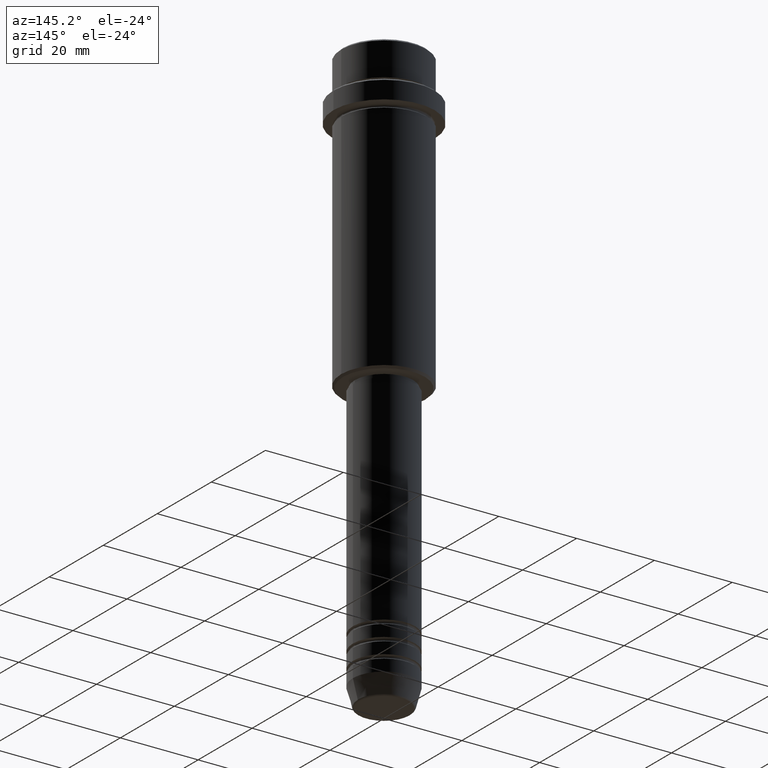
[diagram: clean part render]
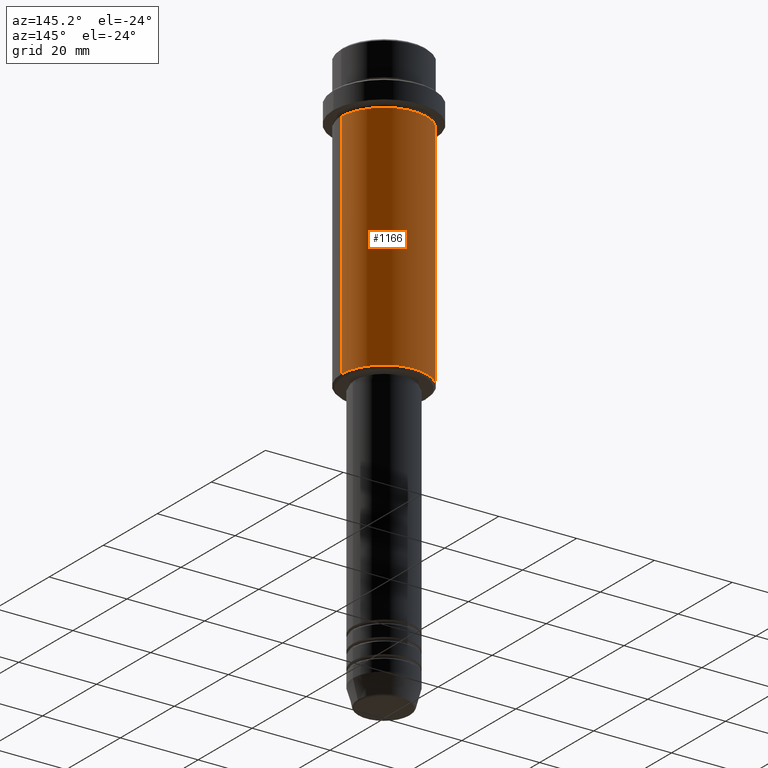
[diagram: same view with one face highlighted and labeled with its STEP entity id]
A machine part, auxiliary view. The second image highlights one B-rep face of the part: STEP entity #1166.
In plain terms, the highlighted cylindrical surface (partial cylindrical patch) has radius 11 mm, axis along (-0, -0, 1).
Its self-contained STEP definition (entity closure, byte-faithful):
#14 = DIRECTION ( 'NONE',  ( -0.000000000000000000, -0.000000000000000000, 1.000000000000000000 ) ) ;
#44 = EDGE_LOOP ( 'NONE', ( #830, #1153, #1371, #793 ) ) ;
#47 = CYLINDRICAL_SURFACE ( 'NONE', #649, 10.99999999999998757 ) ;
#137 = VERTEX_POINT ( 'NONE', #1265 ) ;
#138 = CARTESIAN_POINT ( 'NONE',  ( 10.99999999999998757, 0.000000000000000000, -75.50000000000002842 ) ) ;
#139 = EDGE_CURVE ( 'NONE', #1303, #137, #1374, .T. ) ;
#165 = DIRECTION ( 'NONE',  ( -0.000000000000000000, -0.000000000000000000, 1.000000000000000000 ) ) ;
#191 = CIRCLE ( 'NONE', #1281, 10.99999999999997158 ) ;
#222 = CARTESIAN_POINT ( 'NONE',  ( -10.99999999999998757, 1.347111479062086827E-15, 0.000000000000000000 ) ) ;
#264 = VECTOR ( 'NONE', #14, 1000.000000000000000 ) ;
#265 = EDGE_CURVE ( 'NONE', #137, #617, #1198, .T. ) ;
#389 = DIRECTION ( 'NONE',  ( 1.000000000000000000, 0.000000000000000000, 0.000000000000000000 ) ) ;
#394 = FACE_OUTER_BOUND ( 'NONE', #44, .T. ) ;
#424 = DIRECTION ( 'NONE',  ( -0.000000000000000000, -0.000000000000000000, 1.000000000000000000 ) ) ;
#480 = DIRECTION ( 'NONE',  ( 1.000000000000000000, 0.000000000000000000, 0.000000000000000000 ) ) ;
#511 = EDGE_CURVE ( 'NONE', #1056, #617, #191, .T. ) ;
#552 = EDGE_CURVE ( 'NONE', #1303, #1056, #1249, .T. ) ;
#617 = VERTEX_POINT ( 'NONE', #655 ) ;
#649 = AXIS2_PLACEMENT_3D ( 'NONE', #1022, #165, #389 ) ;
#655 = CARTESIAN_POINT ( 'NONE',  ( -10.99999999999997158, 1.347111479062085841E-15, -16.00000000000000355 ) ) ;
#677 = CARTESIAN_POINT ( 'NONE',  ( 0.000000000000000000, 0.000000000000000000, -16.00000000000000355 ) ) ;
#695 = VECTOR ( 'NONE', #1121, 1000.000000000000000 ) ;
#748 = DIRECTION ( 'NONE',  ( -1.000000000000000000, 0.000000000000000000, 0.000000000000000000 ) ) ;
#793 = ORIENTED_EDGE ( 'NONE', *, *, #552, .F. ) ;
#794 = DIRECTION ( 'NONE',  ( -0.000000000000000000, -0.000000000000000000, 1.000000000000000000 ) ) ;
#830 = ORIENTED_EDGE ( 'NONE', *, *, #139, .T. ) ;
#910 = CARTESIAN_POINT ( 'NONE',  ( 10.99999999999997158, 0.000000000000000000, -16.00000000000000355 ) ) ;
#1022 = CARTESIAN_POINT ( 'NONE',  ( 0.000000000000000000, 0.000000000000000000, 0.000000000000000000 ) ) ;
#1056 = VERTEX_POINT ( 'NONE', #910 ) ;
#1116 = AXIS2_PLACEMENT_3D ( 'NONE', #1378, #424, #748 ) ;
#1121 = DIRECTION ( 'NONE',  ( -0.000000000000000000, -0.000000000000000000, 1.000000000000000000 ) ) ;
#1153 = ORIENTED_EDGE ( 'NONE', *, *, #265, .T. ) ;
#1166 = ADVANCED_FACE ( 'NONE', ( #394 ), #47, .T. ) ;
#1198 = LINE ( 'NONE', #222, #264 ) ;
#1249 = LINE ( 'NONE', #1344, #695 ) ;
#1265 = CARTESIAN_POINT ( 'NONE',  ( -10.99999999999998757, 1.347111479062086827E-15, -75.50000000000002842 ) ) ;
#1281 = AXIS2_PLACEMENT_3D ( 'NONE', #677, #794, #480 ) ;
#1303 = VERTEX_POINT ( 'NONE', #138 ) ;
#1344 = CARTESIAN_POINT ( 'NONE',  ( 10.99999999999998757, 0.000000000000000000, 0.000000000000000000 ) ) ;
#1371 = ORIENTED_EDGE ( 'NONE', *, *, #511, .F. ) ;
#1374 = CIRCLE ( 'NONE', #1116, 10.99999999999998757 ) ;
#1378 = CARTESIAN_POINT ( 'NONE',  ( 0.000000000000000000, 0.000000000000000000, -75.50000000000002842 ) ) ;